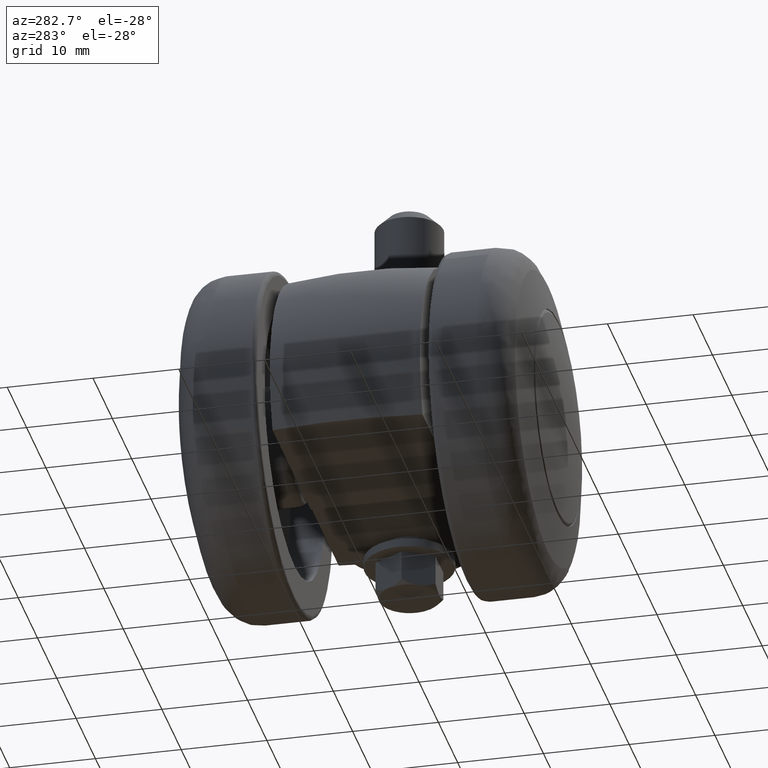
[diagram: clean part render]
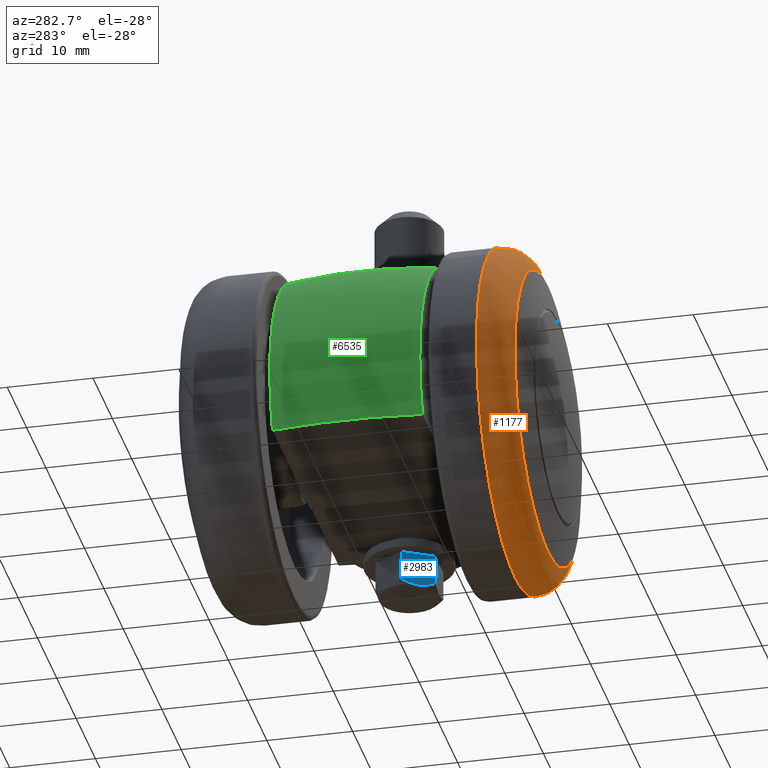
[diagram: same view with three faces highlighted in distinct colors, each labeled with its STEP entity id]
A machine part, auxiliary view with three faces highlighted in distinct colors.
Their STEP definitions:

[orange] entity #1177 — the highlighted face is a freeform B-spline surface patch.
#260=CARTESIAN_POINT('',(-15.271114650524670,-15.710816999999979,-12.914838649031701));
#261=VERTEX_POINT('',#260);
#262=CARTESIAN_POINT('',(0.0,-15.710817000000000,-20.0));
#263=VERTEX_POINT('',#262);
#264=CARTESIAN_POINT('',(-15.271114650524668,-15.710816999999979,-12.914838649031706));
#265=CARTESIAN_POINT('',(-9.279167255449400,-15.710816999999995,-20.0));
#266=CARTESIAN_POINT('',(0.0,-15.710817000000000,-20.0));
#274=(BOUNDED_CURVE()B_SPLINE_CURVE(2,(#264,#265,#266),.UNSPECIFIED.,.F.,.U.)B_SPLINE_CURVE_WITH_KNOTS((3,3),(0.862408068754087,1.0),.UNSPECIFIED.)CURVE()GEOMETRIC_REPRESENTATION_ITEM()RATIONAL_B_SPLINE_CURVE((0.855039476729178,0.838801025498501,1.0))REPRESENTATION_ITEM(''));
#275=EDGE_CURVE('',#261,#263,#274,.T.);
#346=CARTESIAN_POINT('',(-13.767091024963470,-15.710817000000000,14.507487884205510));
#347=VERTEX_POINT('',#346);
#353=CARTESIAN_POINT('',(0.0,-15.710817000000000,20.0));
#354=VERTEX_POINT('',#353);
#355=CARTESIAN_POINT('',(0.0,-15.710817000000000,20.0));
#356=CARTESIAN_POINT('',(-7.979190138179949,-15.710816999999999,19.999999999999993));
#357=CARTESIAN_POINT('',(-13.767091024963474,-15.710817000000004,14.507487884205506));
#365=(BOUNDED_CURVE()B_SPLINE_CURVE(2,(#355,#356,#357),.UNSPECIFIED.,.F.,.U.)B_SPLINE_CURVE_WITH_KNOTS((3,3),(0.500000000000000,0.621049516487266),.UNSPECIFIED.)CURVE()GEOMETRIC_REPRESENTATION_ITEM()RATIONAL_B_SPLINE_CURVE((1.0,0.858181669920930,0.853699662122684))REPRESENTATION_ITEM(''));
#366=EDGE_CURVE('',#354,#347,#365,.T.);
#368=CARTESIAN_POINT('',(8.106151179093516,-15.710817000069889,18.283607769302009));
#369=VERTEX_POINT('',#368);
#370=CARTESIAN_POINT('',(8.106151179093518,-15.710817000069888,18.283607769302005));
#371=CARTESIAN_POINT('',(4.234789588246176,-15.710816999999997,20.0));
#372=CARTESIAN_POINT('',(0.0,-15.710817000000000,20.0));
#380=(BOUNDED_CURVE()B_SPLINE_CURVE(2,(#370,#371,#372),.UNSPECIFIED.,.F.,.U.)B_SPLINE_CURVE_WITH_KNOTS((3,3),(0.431175101877697,0.500000000000000),.UNSPECIFIED.)CURVE()GEOMETRIC_REPRESENTATION_ITEM()RATIONAL_B_SPLINE_CURVE((0.883129907828137,0.919366616217803,1.0))REPRESENTATION_ITEM(''));
#381=EDGE_CURVE('',#369,#354,#380,.T.);
#383=CARTESIAN_POINT('',(19.097290894931451,-15.710817000069440,-5.940831631545199));
#384=VERTEX_POINT('',#383);
#400=CARTESIAN_POINT('',(0.0,-15.710817000000000,-20.0));
#401=CARTESIAN_POINT('',(14.723730654574370,-15.710816999999993,-19.999999999999996));
#402=CARTESIAN_POINT('',(19.097290894931451,-15.710817000069435,-5.940831631545199));
#410=(BOUNDED_CURVE()B_SPLINE_CURVE(2,(#400,#401,#402),.UNSPECIFIED.,.F.,.U.)B_SPLINE_CURVE_WITH_KNOTS((3,3),(0.0,0.199458637681191),.UNSPECIFIED.)CURVE()GEOMETRIC_REPRESENTATION_ITEM()RATIONAL_B_SPLINE_CURVE((1.0,0.766319670357639,0.905515822342134))REPRESENTATION_ITEM(''));
#411=EDGE_CURVE('',#263,#384,#410,.T.);
#430=CARTESIAN_POINT('',(-13.767091024963474,-15.710817000000004,14.507487884205506));
#431=CARTESIAN_POINT('',(-19.999999999999996,-15.710816999999995,8.592678917762354));
#432=CARTESIAN_POINT('',(-20.0,-15.710817000000000,1.673897E-015));
#433=CARTESIAN_POINT('',(-20.0,-15.710817000000002,-7.323181462789214));
#434=CARTESIAN_POINT('',(-15.271114650524668,-15.710816999999979,-12.914838649031706));
#442=(BOUNDED_CURVE()B_SPLINE_CURVE(2,(#430,#431,#432,#433,#434),.UNSPECIFIED.,.F.,.U.)B_SPLINE_CURVE_WITH_KNOTS((3,2,3),(0.621049516487265,0.750000000000000,0.862408068754087),.UNSPECIFIED.)CURVE()GEOMETRIC_REPRESENTATION_ITEM()RATIONAL_B_SPLINE_CURVE((0.853699662122684,0.848925111265616,1.0,0.868305755688046,0.855039476729178))REPRESENTATION_ITEM(''));
#443=EDGE_CURVE('',#347,#261,#442,.T.);
#1060=CARTESIAN_POINT('',(8.103293420644290,-15.473506247143689,18.277167592414600));
#1061=CARTESIAN_POINT('',(7.044574368192737,-15.473506247143677,18.746557123842965));
#1062=CARTESIAN_POINT('',(5.938738749477722,-15.473506247143684,19.090563153760517));
#1063=CARTESIAN_POINT('',(-13.151824404282804,-15.473506247143685,25.029301903238235));
#1064=CARTESIAN_POINT('',(-19.090563153760517,-15.473506247143684,5.938738749477722));
#1065=CARTESIAN_POINT('',(-25.029301903238249,-15.473506247143685,-13.151824404282801));
#1066=CARTESIAN_POINT('',(-5.938738749477723,-15.473506247143684,-19.090563153760517));
#1067=CARTESIAN_POINT('',(13.151824404282799,-15.473506247143685,-25.029301903238249));
#1068=CARTESIAN_POINT('',(19.090563153760517,-15.473506247143684,-5.938738749477724));
#1069=CARTESIAN_POINT('',(8.184736693350166,-18.854524697004308,18.460864796409179));
#1070=CARTESIAN_POINT('',(7.115376838445620,-18.854524697004312,18.934971992326414));
#1071=CARTESIAN_POINT('',(5.998426865703460,-18.854524697004312,19.282435502487203));
#1072=CARTESIAN_POINT('',(-13.284008636783749,-18.854524697004319,25.280862368190665));
#1073=CARTESIAN_POINT('',(-19.282435502487203,-18.854524697004312,5.998426865703461));
#1074=CARTESIAN_POINT('',(-25.280862368190665,-18.854524697004319,-13.284008636783748));
#1075=CARTESIAN_POINT('',(-5.998426865703461,-18.854524697004312,-19.282435502487203));
#1076=CARTESIAN_POINT('',(13.284008636783748,-18.854524697004319,-25.280862368190665));
#1077=CARTESIAN_POINT('',(19.282435502487203,-18.854524697004312,-5.998426865703464));
#1078=CARTESIAN_POINT('',(6.846554747843488,-19.610033649774852,15.442564160169313));
#1079=CARTESIAN_POINT('',(5.952032289021034,-19.610033649774856,15.839156133107325));
#1080=CARTESIAN_POINT('',(5.017700565778839,-19.610033649774845,16.129810314704468));
#1081=CARTESIAN_POINT('',(-11.112109748925622,-19.610033649774849,21.147510880483306));
#1082=CARTESIAN_POINT('',(-16.129810314704468,-19.610033649774845,5.017700565778839));
#1083=CARTESIAN_POINT('',(-21.147510880483306,-19.610033649774849,-11.112109748925622));
#1084=CARTESIAN_POINT('',(-5.017700565778839,-19.610033649774845,-16.129810314704468));
#1085=CARTESIAN_POINT('',(11.112109748925622,-19.610033649774849,-21.147510880483306));
#1086=CARTESIAN_POINT('',(16.129810314704468,-19.610033649774845,-5.017700565778840));
#1094=(BOUNDED_SURFACE()B_SPLINE_SURFACE(2,2,((#1060,#1069,#1078),(#1061,#1070,#1079),(#1062,#1071,#1080),(#1063,#1072,#1081),(#1064,#1073,#1082),(#1065,#1074,#1083),(#1066,#1075,#1084),(#1067,#1076,#1085),(#1068,#1077,#1086)),.UNSPECIFIED.,.F.,.F.,.U.)B_SPLINE_SURFACE_WITH_KNOTS((3,2,2,2,3),(3,3),(0.0,2.650030368855470,35.775441570402727,68.900852771949985,102.026263973497290),(0.0,5.864055308616055),.UNSPECIFIED.)GEOMETRIC_REPRESENTATION_ITEM()RATIONAL_B_SPLINE_SURFACE(((0.875931297452828,0.669055781850209,0.877444359425143),(0.893948527657870,0.682817742493314,0.895492712146242),(0.915397607339027,0.699201025997140,0.916978842435022),(0.647283855631366,0.494409786895169,0.648401957690395),(0.915397607339027,0.699201025997140,0.916978842435022),(0.647283855631366,0.494409786895169,0.648401957690395),(0.915397607339027,0.699201025997140,0.916978842435022),(0.647283855631366,0.494409786895169,0.648401957690395),(0.915397607339027,0.699201025997140,0.916978842435022)))REPRESENTATION_ITEM('')SURFACE());
#1095=CARTESIAN_POINT('',(6.939526629438012,-19.550340797989250,15.652259647310309));
#1096=VERTEX_POINT('',#1095);
#1097=CARTESIAN_POINT('',(0.0,-19.550340798363852,17.121631401930902));
#1098=VERTEX_POINT('',#1097);
#1099=CARTESIAN_POINT('',(6.939526629438012,-19.550340797989247,15.652259647310315));
#1100=CARTESIAN_POINT('',(3.625325319825641,-19.550340798363859,17.121631401930895));
#1101=CARTESIAN_POINT('',(0.0,-19.550340798363852,17.121631401930902));
#1109=(BOUNDED_CURVE()B_SPLINE_CURVE(2,(#1099,#1100,#1101),.UNSPECIFIED.,.F.,.U.)B_SPLINE_CURVE_WITH_KNOTS((3,3),(0.431175101876103,0.500000000000000),.UNSPECIFIED.)CURVE()GEOMETRIC_REPRESENTATION_ITEM()RATIONAL_B_SPLINE_CURVE((0.883129907826458,0.919366616215936,1.0))REPRESENTATION_ITEM(''));
#1110=EDGE_CURVE('',#1096,#1098,#1109,.T.);
#1111=ORIENTED_EDGE('',*,*,#1110,.F.);
#1112=CARTESIAN_POINT('',(8.106151179093516,-15.710817000069893,18.283607769302009));
#1113=CARTESIAN_POINT('',(8.106151179047831,-18.709489488835210,18.283607769207627));
#1114=CARTESIAN_POINT('',(6.939526629438013,-19.550340797989247,15.652259647310313));
#1122=(BOUNDED_CURVE()B_SPLINE_CURVE(2,(#1112,#1113,#1114),.UNSPECIFIED.,.F.,.U.)B_SPLINE_CURVE_WITH_KNOTS((3,3),(-1.680154585360279,-0.314372153896799),.UNSPECIFIED.)CURVE()GEOMETRIC_REPRESENTATION_ITEM()RATIONAL_B_SPLINE_CURVE((0.857997957390248,0.687057807158320,0.859373527053074))REPRESENTATION_ITEM(''));
#1123=EDGE_CURVE('',#369,#1096,#1122,.T.);
#1124=ORIENTED_EDGE('',*,*,#1123,.F.);
#1125=ORIENTED_EDGE('',*,*,#381,.T.);
#1126=ORIENTED_EDGE('',*,*,#366,.T.);
#1127=ORIENTED_EDGE('',*,*,#443,.T.);
#1128=ORIENTED_EDGE('',*,*,#275,.T.);
#1129=ORIENTED_EDGE('',*,*,#411,.T.);
#1130=CARTESIAN_POINT('',(16.348838775160761,-19.550340797973998,-5.085836471327559));
#1131=VERTEX_POINT('',#1130);
#1132=CARTESIAN_POINT('',(19.097290894931447,-15.710817000069436,-5.940831631545199));
#1133=CARTESIAN_POINT('',(19.097290894833442,-18.709489488750066,-5.940831631509769));
#1134=CARTESIAN_POINT('',(16.348838775160761,-19.550340797973998,-5.085836471327559));
#1142=(BOUNDED_CURVE()B_SPLINE_CURVE(2,(#1132,#1133,#1134),.UNSPECIFIED.,.F.,.U.)B_SPLINE_CURVE_WITH_KNOTS((3,3),(-1.680154585360538,-0.314372153927780),.UNSPECIFIED.)CURVE()GEOMETRIC_REPRESENTATION_ITEM()RATIONAL_B_SPLINE_CURVE((0.896656290732558,0.718014185910960,0.898093838658893))REPRESENTATION_ITEM(''));
#1143=EDGE_CURVE('',#384,#1131,#1142,.T.);
#1144=ORIENTED_EDGE('',*,*,#1143,.T.);
#1145=CARTESIAN_POINT('',(0.0,-19.550340798363852,-17.121631401930902));
#1146=VERTEX_POINT('',#1145);
#1147=CARTESIAN_POINT('',(0.0,-19.550340798363852,-17.121631401930902));
#1148=CARTESIAN_POINT('',(12.604714456254973,-19.550340798363852,-17.121631401930902));
#1149=CARTESIAN_POINT('',(16.348838775160754,-19.550340797974002,-5.085836471327559));
#1157=(BOUNDED_CURVE()B_SPLINE_CURVE(2,(#1147,#1148,#1149),.UNSPECIFIED.,.F.,.U.)B_SPLINE_CURVE_WITH_KNOTS((3,3),(0.0,0.199458637678867),.UNSPECIFIED.)CURVE()GEOMETRIC_REPRESENTATION_ITEM()RATIONAL_B_SPLINE_CURVE((1.0,0.766319670360362,0.905515822338890))REPRESENTATION_ITEM(''));
#1158=EDGE_CURVE('',#1146,#1131,#1157,.T.);
#1159=ORIENTED_EDGE('',*,*,#1158,.F.);
#1160=CARTESIAN_POINT('',(0.0,-19.550340798363852,17.121631401930902));
#1161=CARTESIAN_POINT('',(-17.121631401930909,-19.550340798363848,17.121631401930909));
#1162=CARTESIAN_POINT('',(-17.121631401930902,-19.550340798363852,1.673897E-015));
#1163=CARTESIAN_POINT('',(-17.121631401930909,-19.550340798363848,-17.121631401930909));
#1164=CARTESIAN_POINT('',(0.0,-19.550340798363852,-17.121631401930902));
#1172=(BOUNDED_CURVE()B_SPLINE_CURVE(2,(#1160,#1161,#1162,#1163,#1164),.UNSPECIFIED.,.F.,.U.)B_SPLINE_CURVE_WITH_KNOTS((3,2,3),(0.500000000000000,0.750000000000000,1.0),.UNSPECIFIED.)CURVE()GEOMETRIC_REPRESENTATION_ITEM()RATIONAL_B_SPLINE_CURVE((1.0,0.707106781186548,1.0,0.707106781186548,1.0))REPRESENTATION_ITEM(''));
#1173=EDGE_CURVE('',#1098,#1146,#1172,.T.);
#1174=ORIENTED_EDGE('',*,*,#1173,.F.);
#1175=EDGE_LOOP('',(#1111,#1124,#1125,#1126,#1127,#1128,#1129,#1144,#1159,#1174));
#1176=FACE_OUTER_BOUND('',#1175,.T.);
#1177=ADVANCED_FACE('',(#1176),#1094,.T.);

[blue] entity #2983 — the highlighted face is a freeform B-spline surface patch.
#2451=CARTESIAN_POINT('',(11.968911043377240,-1.750000075131565,-13.100000000000000));
#2452=VERTEX_POINT('',#2451);
#2558=CARTESIAN_POINT('',(12.979274000000000,-3.500000000000000,-12.600000080112800));
#2559=VERTEX_POINT('',#2558);
#2560=CARTESIAN_POINT('',(11.968911043377240,-1.750000075131565,-13.100000000000000));
#2561=CARTESIAN_POINT('',(12.144697670341159,-2.054471435609807,-13.099995888410779));
#2562=CARTESIAN_POINT('',(12.316170455738130,-2.351471003532124,-13.050474742177030));
#2563=CARTESIAN_POINT('',(12.568664960004490,-2.788804301036217,-12.918728507812340));
#2564=CARTESIAN_POINT('',(12.652230484542891,-2.933544031155194,-12.865177859415660));
#2565=CARTESIAN_POINT('',(12.817820416147210,-3.220354197706787,-12.742531411798710));
#2566=CARTESIAN_POINT('',(12.899119713445840,-3.361168707217329,-12.674017981415529));
#2567=CARTESIAN_POINT('',(12.979274000000000,-3.500000000000000,-12.600000080112791));
#2568=B_SPLINE_CURVE_WITH_KNOTS('',3,(#2560,#2561,#2562,#2563,#2564,#2565,#2566,#2567),.UNSPECIFIED.,.F.,.U.,(4,2,2,4),(0.500826479905854,0.750000000000000,0.875000000000000,1.0),.UNSPECIFIED.);
#2569=EDGE_CURVE('',#2452,#2559,#2568,.T.);
#2800=CARTESIAN_POINT('',(10.958548000000000,0.0,-12.600000000000000));
#2801=VERTEX_POINT('',#2800);
#2814=CARTESIAN_POINT('',(10.958548000000000,-2.037385E-015,-12.599999999999991));
#2815=CARTESIAN_POINT('',(11.118261439962700,-0.276631784749363,-12.747486240666481));
#2816=CARTESIAN_POINT('',(11.281015980948069,-0.558530910830180,-12.871956148961720));
#2817=CARTESIAN_POINT('',(11.532337464197830,-0.993832476393338,-13.004246549700021));
#2818=CARTESIAN_POINT('',(11.617319896249089,-1.141026362243982,-13.039196123958670));
#2819=CARTESIAN_POINT('',(11.746980373829750,-1.365604890719541,-13.075069639346291));
#2820=CARTESIAN_POINT('',(11.790565044303021,-1.441095752249733,-13.084268703041200));
#2821=CARTESIAN_POINT('',(11.878522112243710,-1.593441858447401,-13.096704981028600));
#2822=CARTESIAN_POINT('',(11.923062102555919,-1.670587382428750,-13.099916899801160));
#2823=CARTESIAN_POINT('',(11.967744866327889,-1.747980197289293,-13.099999392441090));
#2824=CARTESIAN_POINT('',(11.968327978574459,-1.748990177297962,-13.099999923873989));
#2825=CARTESIAN_POINT('',(11.968911043377240,-1.750000075131565,-13.100000000000000));
#2826=B_SPLINE_CURVE_WITH_KNOTS('',3,(#2814,#2815,#2816,#2817,#2818,#2819,#2820,#2821,#2822,#2823,#2824,#2825),.UNSPECIFIED.,.F.,.U.,(4,2,2,2,2,4),(0.0,0.250000000000000,0.375000000000000,0.437500000000000,0.500000000000000,0.500826480978672),.UNSPECIFIED.);
#2827=EDGE_CURVE('',#2801,#2452,#2826,.T.);
#2846=CARTESIAN_POINT('',(10.958548000000000,0.0,-9.100000000000000));
#2847=VERTEX_POINT('',#2846);
#2848=CARTESIAN_POINT('',(10.958548000000000,0.0,-9.100000000000000));
#2849=CARTESIAN_POINT('',(10.958548000000000,0.0,-12.600000000000000));
#2850=QUASI_UNIFORM_CURVE('',1,(#2848,#2849),.UNSPECIFIED.,.F.,.U.);
#2851=EDGE_CURVE('',#2847,#2801,#2850,.T.);
#2949=CARTESIAN_POINT('',(12.979274000000000,-3.500000000000000,-9.100000000000000));
#2950=VERTEX_POINT('',#2949);
#2951=CARTESIAN_POINT('',(12.979274000000000,-3.500000000000000,-9.100000000000000));
#2952=CARTESIAN_POINT('',(12.979274000000000,-3.500000000000000,-12.600000080112800));
#2953=QUASI_UNIFORM_CURVE('',1,(#2951,#2952),.UNSPECIFIED.,.F.,.U.);
#2954=EDGE_CURVE('',#2950,#2559,#2953,.T.);
#2967=CARTESIAN_POINT('',(13.080209221845180,-3.674824927505332,-13.299800376706131));
#2968=CARTESIAN_POINT('',(10.857612687821330,0.174825083967523,-13.299800376706131));
#2969=CARTESIAN_POINT('',(13.080209221845180,-3.674824927505332,-8.900200481600759));
#2970=CARTESIAN_POINT('',(10.857612687821330,0.174825083967523,-8.900200481600759));
#2971=B_SPLINE_SURFACE_WITH_KNOTS('',1,1,((#2967,#2969),(#2968,#2970)),.UNSPECIFIED.,.F.,.F.,.U.,(2,2),(2,2),(0.0,4.445192972626473),(0.0,4.399599895105366),.UNSPECIFIED.);
#2972=ORIENTED_EDGE('',*,*,#2851,.T.);
#2973=ORIENTED_EDGE('',*,*,#2827,.T.);
#2974=ORIENTED_EDGE('',*,*,#2569,.T.);
#2975=ORIENTED_EDGE('',*,*,#2954,.F.);
#2976=CARTESIAN_POINT('',(10.958548000000000,0.0,-9.100000000000000));
#2977=CARTESIAN_POINT('',(12.979274000000000,-3.500000000000000,-9.100000000000000));
#2978=QUASI_UNIFORM_CURVE('',1,(#2976,#2977),.UNSPECIFIED.,.F.,.U.);
#2979=EDGE_CURVE('',#2847,#2950,#2978,.T.);
#2980=ORIENTED_EDGE('',*,*,#2979,.F.);
#2981=EDGE_LOOP('',(#2972,#2973,#2974,#2975,#2980));
#2982=FACE_OUTER_BOUND('',#2981,.T.);
#2983=ADVANCED_FACE('',(#2982),#2971,.F.);

[green] entity #6535 — the highlighted face is a freeform B-spline surface patch.
#5581=CARTESIAN_POINT('',(17.914251238854799,8.033225897666430,-4.766488081632760));
#5582=VERTEX_POINT('',#5581);
#5658=CARTESIAN_POINT('',(17.914251238862551,-8.033225897663630,-4.766488081632760));
#5659=VERTEX_POINT('',#5658);
#5783=CARTESIAN_POINT('',(7.403088951158311,-5.538837387554620,17.259711023709801));
#5784=VERTEX_POINT('',#5783);
#5785=CARTESIAN_POINT('',(17.914251238862551,-8.033225897663630,-4.766488081632760));
#5786=CARTESIAN_POINT('',(17.966359183007249,-8.026874863474060,-4.565692986233878));
#5787=CARTESIAN_POINT('',(18.069356624220639,-8.014321302182760,-4.168798014195636));
#5788=CARTESIAN_POINT('',(18.196756228808219,-7.999004924842661,-3.574303088601877));
#5789=CARTESIAN_POINT('',(18.303341403480609,-7.986573839477517,-2.990551698458225));
#5790=CARTESIAN_POINT('',(18.388596864716941,-7.977248254587569,-2.417939216898310));
#5791=CARTESIAN_POINT('',(18.454239150895209,-7.970971321363548,-1.857382466760936));
#5792=CARTESIAN_POINT('',(18.501404216708789,-7.967757708143218,-1.309554469836669));
#5793=CARTESIAN_POINT('',(18.531367322613690,-7.967603403512776,-0.775087133204184));
#5794=CARTESIAN_POINT('',(18.545351616092571,-7.970509689601951,-0.254524518784415));
#5795=CARTESIAN_POINT('',(18.544572496938841,-7.976474424395925,0.251660535743235));
#5796=CARTESIAN_POINT('',(18.530221005755308,-7.985503360805645,0.743062220155383));
#5797=CARTESIAN_POINT('',(18.503466115651872,-7.997574810673464,1.219348045308084));
#5798=CARTESIAN_POINT('',(18.439920639116199,-8.022960112765988,1.989561171801496));
#5799=CARTESIAN_POINT('',(18.275002269757270,-8.082120572525584,3.215424067327366));
#5800=CARTESIAN_POINT('',(17.894505005590560,-8.182600358696604,4.896742788359291));
#5801=CARTESIAN_POINT('',(17.348782015634139,-8.282341851353406,6.516842126211997));
#5802=CARTESIAN_POINT('',(16.683871330559089,-8.359621647559374,8.040458859572453));
#5803=CARTESIAN_POINT('',(15.962796863862570,-8.380993408331603,9.390920061997758));
#5804=CARTESIAN_POINT('',(15.066454081781311,-8.327490911978158,10.780795361138640));
#5805=CARTESIAN_POINT('',(14.099451876221600,-8.163468243820315,12.048521795955020));
#5806=CARTESIAN_POINT('',(13.297982562055070,-7.928600576712904,12.945535943419170));
#5807=CARTESIAN_POINT('',(12.761109470430410,-7.719597198217616,13.496713931321930));
#5808=CARTESIAN_POINT('',(12.466154328294470,-7.592940995246647,13.788838568738811));
#5809=CARTESIAN_POINT('',(12.174326623764250,-7.468614809065756,14.064563390056509));
#5810=CARTESIAN_POINT('',(11.908298874648089,-7.364905525454758,14.304130186827591));
#5811=CARTESIAN_POINT('',(11.609214675600940,-7.270460623120170,14.561660718455061));
#5812=CARTESIAN_POINT('',(11.173184866472930,-7.135775814440390,14.919867695591851));
#5813=CARTESIAN_POINT('',(10.525883600458791,-6.948705412128718,15.410378525275931));
#5814=CARTESIAN_POINT('',(9.785284516098537,-6.727137411643456,15.916120673738799));
#5815=CARTESIAN_POINT('',(9.075456045562342,-6.470337642351790,16.356198421445960));
#5816=CARTESIAN_POINT('',(8.468379071433731,-6.191535006252049,16.705368310813888));
#5817=CARTESIAN_POINT('',(7.917914114728858,-5.892342556883730,17.002439363086289));
#5818=CARTESIAN_POINT('',(7.572689592201480,-5.655293822812133,17.174957127335791));
#5819=CARTESIAN_POINT('',(7.403088951158311,-5.538837387554620,17.259711023709801));
#5820=B_SPLINE_CURVE_WITH_KNOTS('',3,(#5785,#5786,#5787,#5788,#5789,#5790,#5791,#5792,#5793,#5794,#5795,#5796,#5797,#5798,#5799,#5800,#5801,#5802,#5803,#5804,#5805,#5806,#5807,#5808,#5809,#5810,#5811,#5812,#5813,#5814,#5815,#5816,#5817,#5818,#5819),.UNSPECIFIED.,.F.,.U.,(4,1,1,1,1,1,1,1,1,1,1,1,1,1,1,1,1,1,1,1,1,1,1,1,1,1,1,1,1,1,1,1,4),(0.0,0.023134657630503,0.045728354445773,0.067780999411041,0.089292568582962,0.110263107972298,0.130692736924785,0.150581652093267,0.169930132087804,0.188738542907130,0.207007344275210,0.224737097031538,0.241928471754678,0.293200990810137,0.362636930863139,0.434097392724822,0.483746809426520,0.548019888203447,0.604487135512648,0.667960181194540,0.726306161141386,0.740727718064208,0.756831550676735,0.774683158927540,0.787580057752253,0.798366936040224,0.819915744085773,0.852248017028327,0.891244491762327,0.922835832544236,0.949540242699298,0.975210314949735,1.0),.UNSPECIFIED.);
#5821=EDGE_CURVE('',#5659,#5784,#5820,.T.);
#5938=CARTESIAN_POINT('',(7.386479234318310,5.485709288029580,17.271525380089351));
#5939=VERTEX_POINT('',#5938);
#5953=CARTESIAN_POINT('',(7.403088951158311,-5.538837387554620,17.259711023709801));
#5954=CARTESIAN_POINT('',(7.334529164740666,-5.486861049581683,17.293273304077829));
#5955=CARTESIAN_POINT('',(7.196703203829309,-5.382372781481388,17.360743661710590));
#5956=CARTESIAN_POINT('',(7.001634897119875,-5.203854570734504,17.454688716293571));
#5957=CARTESIAN_POINT('',(6.814429701050631,-5.008866384696103,17.543962160417621));
#5958=CARTESIAN_POINT('',(6.636053652048231,-4.795829789416280,17.628158847871710));
#5959=CARTESIAN_POINT('',(6.466341170465348,-4.565191210967439,17.707566015795059));
#5960=CARTESIAN_POINT('',(6.305421818875332,-4.316837202416782,17.782247168896301));
#5961=CARTESIAN_POINT('',(6.153332422459692,-4.050801768442972,17.852292945577190));
#5962=CARTESIAN_POINT('',(6.010116713036469,-3.767086467520705,17.917752572176020));
#5963=CARTESIAN_POINT('',(5.875838382738108,-3.465648869275987,17.978645368589749));
#5964=CARTESIAN_POINT('',(5.606338558536185,-2.780159844653781,18.099712030466300));
#5965=CARTESIAN_POINT('',(5.303739468953599,-1.641790635979052,18.231412868031960));
#5966=CARTESIAN_POINT('',(5.177689698524464,-0.037588612259944,18.287289306953959));
#5967=CARTESIAN_POINT('',(5.299234324397631,1.568422495676676,18.234487104565201));
#5968=CARTESIAN_POINT('',(5.616592758140442,2.780990346291720,18.097170206721341));
#5969=CARTESIAN_POINT('',(5.944962046364763,3.595827068623386,17.949792423126461));
#5970=CARTESIAN_POINT('',(6.181475104421584,4.071146912848945,17.842150422739891));
#5971=CARTESIAN_POINT('',(6.443483775787870,4.498858943065685,17.721412080956171));
#5972=CARTESIAN_POINT('',(6.731504104039623,4.877669274286903,17.586713684157250));
#5973=CARTESIAN_POINT('',(7.042701583463696,5.211878136558241,17.439097860578141));
#5974=CARTESIAN_POINT('',(7.272672842930659,5.395058979576839,17.326999690277940));
#5975=CARTESIAN_POINT('',(7.386479234318310,5.485709288029580,17.271525380089351));
#5976=B_SPLINE_CURVE_WITH_KNOTS('',3,(#5953,#5954,#5955,#5956,#5957,#5958,#5959,#5960,#5961,#5962,#5963,#5964,#5965,#5966,#5967,#5968,#5969,#5970,#5971,#5972,#5973,#5974,#5975),.UNSPECIFIED.,.F.,.U.,(4,1,1,1,1,1,1,1,1,1,1,1,1,1,1,1,1,1,1,1,4),(0.000000148191548,0.022197241357129,0.044623045859856,0.067391102922238,0.090609951851452,0.114381877159856,0.138802173944591,0.163958766484240,0.189932132388584,0.216795468498345,0.244615031354378,0.369404011468025,0.499618991481180,0.629799823341089,0.754896159557081,0.800587953370339,0.843838337172977,0.884986345816347,0.924424722791379,0.962598917767378,0.999997832912100),.UNSPECIFIED.);
#5977=EDGE_CURVE('',#5784,#5939,#5976,.T.);
#6053=CARTESIAN_POINT('',(7.386479234318310,5.485709288029580,17.271525380089351));
#6054=CARTESIAN_POINT('',(7.486221019309778,5.556907220860222,17.222098678278471));
#6055=CARTESIAN_POINT('',(7.687882344920311,5.700857617542867,17.122166095273371));
#6056=CARTESIAN_POINT('',(8.003241199394600,5.896671251997398,16.958750576215639));
#6057=CARTESIAN_POINT('',(8.331024800717351,6.080632235994523,16.782742469868658));
#6058=CARTESIAN_POINT('',(8.671498394363168,6.251034909392844,16.592469806959979));
#6059=CARTESIAN_POINT('',(9.135624412407225,6.458480586073858,16.322253143447369));
#6060=CARTESIAN_POINT('',(9.768976279840670,6.693917870743215,15.930007000550590));
#6061=CARTESIAN_POINT('',(10.511487019273140,6.923210063571843,15.423273026747310));
#6062=CARTESIAN_POINT('',(11.156835003966849,7.114950267824174,14.934829545544810));
#6063=CARTESIAN_POINT('',(11.590705753248750,7.252960337053574,14.578701902554320));
#6064=CARTESIAN_POINT('',(11.882460101941531,7.347265590518465,14.327951240595310));
#6065=CARTESIAN_POINT('',(12.146453348796500,7.454034688656875,14.090748148022859));
#6066=CARTESIAN_POINT('',(12.437980717242381,7.580444293550019,13.816178933081821));
#6067=CARTESIAN_POINT('',(12.737792489715600,7.710495401240729,13.520107858661641));
#6068=CARTESIAN_POINT('',(13.275119475342910,7.921073042167082,12.970229728555740));
#6069=CARTESIAN_POINT('',(14.079347755203759,8.158949449357030,12.072822889893921));
#6070=CARTESIAN_POINT('',(15.049408247275110,8.325433328598255,10.805092230607739));
#6071=CARTESIAN_POINT('',(15.950228148593000,8.381670926311035,9.412324060405652));
#6072=CARTESIAN_POINT('',(16.680059457231110,8.363240832041781,8.048581062209506));
#6073=CARTESIAN_POINT('',(17.345918534482411,8.288382195214686,6.522075018368141));
#6074=CARTESIAN_POINT('',(17.890241684716120,8.186426772477971,4.907078377673295));
#6075=CARTESIAN_POINT('',(18.271277641402769,8.083496021832877,3.235667196120195));
#6076=CARTESIAN_POINT('',(18.459492716606221,8.015995394721090,1.849637698374606));
#6077=CARTESIAN_POINT('',(18.536950920578271,7.983759064528832,0.737991357447512));
#6078=CARTESIAN_POINT('',(18.552482548705029,7.968958336848079,-0.261745190207765));
#6079=CARTESIAN_POINT('',(18.509065096124271,7.966316116091839,-1.319119109250257));
#6080=CARTESIAN_POINT('',(18.395252117467379,7.976109271298095,-2.429604479155302));
#6081=CARTESIAN_POINT('',(18.207630329498301,7.997502877653438,-3.589668941810608));
#6082=CARTESIAN_POINT('',(18.013610142748998,8.021127557241091,-4.367933912151980));
#6083=CARTESIAN_POINT('',(17.914251238854799,8.033225897666430,-4.766488081632760));
#6084=B_SPLINE_CURVE_WITH_KNOTS('',3,(#6053,#6054,#6055,#6056,#6057,#6058,#6059,#6060,#6061,#6062,#6063,#6064,#6065,#6066,#6067,#6068,#6069,#6070,#6071,#6072,#6073,#6074,#6075,#6076,#6077,#6078,#6079,#6080,#6081,#6082,#6083),.UNSPECIFIED.,.F.,.U.,(4,1,1,1,1,1,1,1,1,1,1,1,1,1,1,1,1,1,1,1,1,1,1,1,1,1,1,1,4),(0.0,0.014707675306236,0.029736477035762,0.045122930328225,0.060901103570506,0.077102651983772,0.109197688818318,0.147785705454688,0.180323103495701,0.201764336649875,0.212131912383118,0.224410329211139,0.243009776121284,0.258884541624196,0.273495542779581,0.331741622649389,0.395238762729899,0.451772734466870,0.516257605515822,0.567154421697895,0.637218745362155,0.705992202989096,0.758023668963719,0.792957262104318,0.830045226577686,0.869291604048902,0.910698921332048,0.954268380823266,1.0),.UNSPECIFIED.);
#6085=EDGE_CURVE('',#5939,#5582,#6084,.T.);
#6291=CARTESIAN_POINT('',(-17.071565970389500,8.749999987782589,-7.0));
#6292=VERTEX_POINT('',#6291);
#6299=CARTESIAN_POINT('',(-17.071566060112449,-8.750000000000000,-7.0));
#6300=VERTEX_POINT('',#6299);
#6306=CARTESIAN_POINT('',(-17.071565970389500,8.749999987782589,-7.0));
#6307=CARTESIAN_POINT('',(-17.120747453738371,8.388818060238544,-7.000000000000003));
#6308=CARTESIAN_POINT('',(-17.166934987479529,8.026668211518496,-7.000000000000001));
#6309=CARTESIAN_POINT('',(-17.253208862207639,7.301122308583183,-7.0));
#6310=CARTESIAN_POINT('',(-17.293245217614960,6.938163401099259,-7.0));
#6311=CARTESIAN_POINT('',(-17.404096679073579,5.848731457941935,-6.999999999999999));
#6312=CARTESIAN_POINT('',(-17.465657928447271,5.121703426352674,-7.000000000000001));
#6313=CARTESIAN_POINT('',(-17.613535710566079,2.938411910233853,-7.0));
#6314=CARTESIAN_POINT('',(-17.663102986991440,1.479944405491077,-6.999999999999998));
#6315=CARTESIAN_POINT('',(-17.663532098137559,-0.027140147488679,-7.0));
#6316=CARTESIAN_POINT('',(-17.663496515346669,-0.073548358183108,-7.0));
#6317=CARTESIAN_POINT('',(-17.663326883545341,-0.165792862593715,-7.000000000000002));
#6318=CARTESIAN_POINT('',(-17.662925375638292,-0.304137457009127,-6.999999999999998));
#6319=CARTESIAN_POINT('',(-17.660960065219712,-0.626786520336745,-7.0));
#6320=CARTESIAN_POINT('',(-17.652923046454202,-1.271465806468155,-6.999999999999998));
#6321=CARTESIAN_POINT('',(-17.639019213730460,-1.822990886469571,-7.000000000000001));
#6322=CARTESIAN_POINT('',(-17.601913331705571,-2.924639790841984,-7.0));
#6323=CARTESIAN_POINT('',(-17.564782199594319,-3.657204617244782,-7.000000000000001));
#6324=CARTESIAN_POINT('',(-17.416510105829818,-5.849341419667979,-7.000000000000002));
#6325=CARTESIAN_POINT('',(-17.268551622676789,-7.303364938210682,-7.0));
#6326=CARTESIAN_POINT('',(-17.071566060112449,-8.750000000000000,-7.0));
#6327=B_SPLINE_CURVE_WITH_KNOTS('',3,(#6306,#6307,#6308,#6309,#6310,#6311,#6312,#6313,#6314,#6315,#6316,#6317,#6318,#6319,#6320,#6321,#6322,#6323,#6324,#6325,#6326),.UNSPECIFIED.,.F.,.U.,(4,2,2,2,2,2,1,1,1,2,2,4),(0.0,0.062500000000000,0.125000000000000,0.250000000000000,0.500000000000000,0.507812500000000,0.515625000000000,0.531250000000000,0.562500000000000,0.625000000000000,0.750000000000000,1.0),.UNSPECIFIED.);
#6328=EDGE_CURVE('',#6292,#6300,#6327,.T.);
#6356=CARTESIAN_POINT('',(17.518799232968949,6.045137370326870,-6.650000000000090));
#6357=VERTEX_POINT('',#6356);
#6358=CARTESIAN_POINT('',(17.914251238854821,8.033225897666435,-4.766488081632770));
#6359=CARTESIAN_POINT('',(17.880055248774120,8.037781881203378,-4.892962502536809));
#6360=CARTESIAN_POINT('',(17.846407037208071,8.029322029000650,-5.017837031795090));
#6361=CARTESIAN_POINT('',(17.796897416351118,7.997058650005957,-5.202780109704046));
#6362=CARTESIAN_POINT('',(17.780557310664371,7.983019140645059,-5.264030669808004));
#6363=CARTESIAN_POINT('',(17.756337352584222,7.956797238753236,-5.355291477093816));
#6364=CARTESIAN_POINT('',(17.748296515821600,7.947168463382724,-5.385670583379727));
#6365=CARTESIAN_POINT('',(17.732506029569329,7.926384557997112,-5.445520624761572));
#6366=CARTESIAN_POINT('',(17.724735978255961,7.915211169178522,-5.475068088832245));
#6367=CARTESIAN_POINT('',(17.686523269352410,7.855481349258668,-5.620943837866476));
#6368=CARTESIAN_POINT('',(17.657967054843368,7.795455413285689,-5.731743133933775));
#6369=CARTESIAN_POINT('',(17.618681636227048,7.686468479465130,-5.888919199645269));
#6370=CARTESIAN_POINT('',(17.606136571468308,7.646732212901336,-5.940002236703679));
#6371=CARTESIAN_POINT('',(17.582943681735632,7.562686358542647,-6.036653213762627));
#6372=CARTESIAN_POINT('',(17.561500783909700,7.473746991400296,-6.128361739494425));
#6373=CARTESIAN_POINT('',(17.543633090825729,7.375243934630250,-6.210445763388172));
#6374=CARTESIAN_POINT('',(17.527635883617300,7.271936154860710,-6.287711206634187));
#6375=CARTESIAN_POINT('',(17.520542280028859,7.217539345884549,-6.324118009549488));
#6376=CARTESIAN_POINT('',(17.502581896190030,7.050259361931216,-6.424023503423662));
#6377=CARTESIAN_POINT('',(17.494909152066811,6.933096636869591,-6.478680721704620));
#6378=CARTESIAN_POINT('',(17.489665274045990,6.749514464650406,-6.544110711606596));
#6379=CARTESIAN_POINT('',(17.488970696824140,6.686693118573019,-6.563214681152553));
#6380=CARTESIAN_POINT('',(17.489677690457832,6.560160607012049,-6.595491691531433));
#6381=CARTESIAN_POINT('',(17.491065499231379,6.496542395100036,-6.608680191968317));
#6382=CARTESIAN_POINT('',(17.498134341037929,6.304707793499284,-6.640023134853577));
#6383=CARTESIAN_POINT('',(17.506715719760908,6.175462874184444,-6.650000000000072));
#6384=CARTESIAN_POINT('',(17.518799232968949,6.045137370326870,-6.650000000000090));
#6385=B_SPLINE_CURVE_WITH_KNOTS('',3,(#6358,#6359,#6360,#6361,#6362,#6363,#6364,#6365,#6366,#6367,#6368,#6369,#6370,#6371,#6372,#6373,#6374,#6375,#6376,#6377,#6378,#6379,#6380,#6381,#6382,#6383,#6384),.UNSPECIFIED.,.F.,.U.,(4,2,2,2,2,2,2,1,2,2,2,2,2,4),(0.0,0.125000000000002,0.187500000000003,0.218750000000004,0.250000000000005,0.375000000000003,0.437500000000002,0.500000000000001,0.562500000000001,0.625000000000000,0.750000000000000,0.812500000000000,0.875000000000000,1.0),.UNSPECIFIED.);
#6386=EDGE_CURVE('',#5582,#6357,#6385,.T.);
#6390=CARTESIAN_POINT('',(17.518799232968899,-6.045137370326870,-6.650000000000090));
#6391=VERTEX_POINT('',#6390);
#6392=CARTESIAN_POINT('',(17.518799232968899,-6.045137370326870,-6.650000000000090));
#6393=CARTESIAN_POINT('',(17.512834462233450,-6.109469798993286,-6.650000000000089));
#6394=CARTESIAN_POINT('',(17.507685163255442,-6.173961198372443,-6.647560784729786));
#6395=CARTESIAN_POINT('',(17.499164110505738,-6.303289490464276,-6.637398804390432));
#6396=CARTESIAN_POINT('',(17.495785055608010,-6.368437515053357,-6.629613365476833));
#6397=CARTESIAN_POINT('',(17.488684949296871,-6.561196560300029,-6.598111196333843));
#6398=CARTESIAN_POINT('',(17.487917980768479,-6.686586573980090,-6.566388621718931));
#6399=CARTESIAN_POINT('',(17.493071211123770,-6.869608430030125,-6.501381460576476));
#6400=CARTESIAN_POINT('',(17.495842761278720,-6.929767894924527,-6.476794864215909));
#6401=CARTESIAN_POINT('',(17.503606951689211,-7.048261928544241,-6.421340884029957));
#6402=CARTESIAN_POINT('',(17.508544370688259,-7.105688760982011,-6.390884160372167));
#6403=CARTESIAN_POINT('',(17.526333776582419,-7.271686407082564,-6.291848675516857));
#6404=CARTESIAN_POINT('',(17.542167024864330,-7.374424564811509,-6.215493882875063));
#6405=CARTESIAN_POINT('',(17.571725882466438,-7.516081108482998,-6.084647953790038));
#6406=CARTESIAN_POINT('',(17.582623075170542,-7.561416276113676,-6.038011912497265));
#6407=CARTESIAN_POINT('',(17.605798477320761,-7.645612278759676,-5.941389154140695));
#6408=CARTESIAN_POINT('',(17.630429225500649,-7.723833495533362,-5.841054203343167));
#6409=CARTESIAN_POINT('',(17.657746050772609,-7.790390889939816,-5.733433672973225));
#6410=CARTESIAN_POINT('',(17.686339534627461,-7.851081375781846,-5.622129891806847));
#6411=CARTESIAN_POINT('',(17.701370279867401,-7.878627446701847,-5.564273072741456));
#6412=CARTESIAN_POINT('',(17.747478684539900,-7.950880100144648,-5.388234397197390));
#6413=CARTESIAN_POINT('',(17.779538096171599,-7.985538997900667,-5.267638982596011));
#6414=CARTESIAN_POINT('',(17.829217544768682,-8.018220546846099,-5.082041975614091));
#6415=CARTESIAN_POINT('',(17.846107581744871,-8.025881794834726,-5.019160060311244));
#6416=CARTESIAN_POINT('',(17.880091399038768,-8.034514912322260,-4.892943132588083));
#6417=CARTESIAN_POINT('',(17.897145056407599,-8.035504980255761,-4.829755573341163));
#6418=CARTESIAN_POINT('',(17.914251238862551,-8.033225897663630,-4.766488081632760));
#6419=B_SPLINE_CURVE_WITH_KNOTS('',3,(#6392,#6393,#6394,#6395,#6396,#6397,#6398,#6399,#6400,#6401,#6402,#6403,#6404,#6405,#6406,#6407,#6408,#6409,#6410,#6411,#6412,#6413,#6414,#6415,#6416,#6417,#6418),.UNSPECIFIED.,.F.,.U.,(4,2,2,2,2,2,2,2,1,2,2,2,2,4),(0.0,0.062500000000000,0.125000000000001,0.250000000000001,0.312500000000001,0.375000000000001,0.500000000000000,0.562500000000000,0.625000000000000,0.687500000000000,0.749999999999999,0.874999999999999,0.937500000000000,1.0),.UNSPECIFIED.);
#6420=EDGE_CURVE('',#6391,#5659,#6419,.T.);
#6440=CARTESIAN_POINT('',(-16.184399423542761,9.616212988173091,-8.618972474447105));
#6441=CARTESIAN_POINT('',(-17.361547459608904,-5.843078E-015,-9.245860519884545));
#6442=CARTESIAN_POINT('',(-16.184399423542761,-9.616212988173102,-8.618972474447105));
#6443=CARTESIAN_POINT('',(-18.336342907353373,9.616212988173091,-4.578129673041691));
#6444=CARTESIAN_POINT('',(-19.670009327537500,-6.266419E-015,-4.911113073441325));
#6445=CARTESIAN_POINT('',(-18.336342907353373,-9.616212988173103,-4.578129673041693));
#6446=CARTESIAN_POINT('',(-18.336342907353373,9.616212988173091,6.938894E-015));
#6447=CARTESIAN_POINT('',(-19.670009327537493,-7.227938E-015,6.938894E-015));
#6448=CARTESIAN_POINT('',(-18.336342907353373,-9.616212988173102,6.938894E-015));
#6449=CARTESIAN_POINT('',(-18.336342907353352,9.616212988173093,18.336342907353366));
#6450=CARTESIAN_POINT('',(-19.670009327537493,-3.171511E-015,19.670009327537493));
#6451=CARTESIAN_POINT('',(-18.336342907353369,-9.616212988173100,18.336342907353369));
#6452=CARTESIAN_POINT('',(0.0,9.616212988173091,18.336342907353373));
#6453=CARTESIAN_POINT('',(0.0,-7.227938E-015,19.670009327537507));
#6454=CARTESIAN_POINT('',(0.0,-9.616212988173102,18.336342907353373));
#6455=CARTESIAN_POINT('',(18.336342907353366,9.616212988173093,18.336342907353366));
#6456=CARTESIAN_POINT('',(19.670009327537493,-3.171511E-015,19.670009327537493));
#6457=CARTESIAN_POINT('',(18.336342907353369,-9.616212988173100,18.336342907353369));
#6458=CARTESIAN_POINT('',(18.336342907353373,9.616212988173091,6.938894E-015));
#6459=CARTESIAN_POINT('',(19.670009327537493,-7.227938E-015,6.938894E-015));
#6460=CARTESIAN_POINT('',(18.336342907353373,-9.616212988173102,6.938894E-015));
#6461=CARTESIAN_POINT('',(18.336342907353362,9.616212988173091,-4.578128732108880));
#6462=CARTESIAN_POINT('',(19.670009327537493,-6.266420E-015,-4.911112064071177));
#6463=CARTESIAN_POINT('',(18.336342907353366,-9.616212988173103,-4.578128732108882));
#6464=CARTESIAN_POINT('',(16.184400256204775,9.616212988173091,-8.618970910903853));
#6465=CARTESIAN_POINT('',(17.361548352833342,-5.843078E-015,-9.245858842619319));
#6466=CARTESIAN_POINT('',(16.184400256204775,-9.616212988173103,-8.618970910903856));
#6474=(BOUNDED_SURFACE()B_SPLINE_SURFACE(2,2,((#6440,#6443,#6446,#6449,#6452,#6455,#6458,#6461,#6464),(#6441,#6444,#6447,#6450,#6453,#6456,#6459,#6462,#6465),(#6442,#6445,#6448,#6451,#6454,#6457,#6460,#6463,#6466)),.UNSPECIFIED.,.F.,.F.,.U.)B_SPLINE_SURFACE_WITH_KNOTS((3,3),(3,2,2,2,3),(0.0,19.324029757826882),(0.0,10.073673611749520,41.553904352104752,73.034135092459977,83.107806827841515),.UNSPECIFIED.)GEOMETRIC_REPRESENTATION_ITEM()RATIONAL_B_SPLINE_SURFACE(((0.757709549364079,0.787010571204271,0.868402295303922,0.614053151807366,0.868402295303922,0.614053151807366,0.868402295303922,0.787010586364661,0.757709560279562),(0.750525844841199,0.779549069096163,0.860169133267507,0.608231427100809,0.860169133267507,0.608231427100809,0.860169133267507,0.779549084112820,0.750525855653195),(0.757709549364079,0.787010571204271,0.868402295303922,0.614053151807366,0.868402295303922,0.614053151807366,0.868402295303922,0.787010586364661,0.757709560279562)))REPRESENTATION_ITEM('')SURFACE());
#6475=ORIENTED_EDGE('',*,*,#6420,.T.);
#6476=ORIENTED_EDGE('',*,*,#5821,.T.);
#6477=ORIENTED_EDGE('',*,*,#5977,.T.);
#6478=ORIENTED_EDGE('',*,*,#6085,.T.);
#6479=ORIENTED_EDGE('',*,*,#6386,.T.);
#6480=CARTESIAN_POINT('',(17.210922830588100,8.749999987976100,-6.650000000000090));
#6481=VERTEX_POINT('',#6480);
#6482=CARTESIAN_POINT('',(17.518799232968949,6.045137370326870,-6.650000000000090));
#6483=CARTESIAN_POINT('',(17.434931331218749,6.949559559689050,-6.650000000000091));
#6484=CARTESIAN_POINT('',(17.332334095454939,7.851184648453581,-6.650000000000091));
#6485=CARTESIAN_POINT('',(17.210922830588100,8.749999987976100,-6.650000000000090));
#6486=B_SPLINE_CURVE_WITH_KNOTS('',3,(#6482,#6483,#6484,#6485),.UNSPECIFIED.,.F.,.U.,(4,4),(0.0,0.015843158056724),.UNSPECIFIED.);
#6487=EDGE_CURVE('',#6357,#6481,#6486,.T.);
#6488=ORIENTED_EDGE('',*,*,#6487,.T.);
#6489=CARTESIAN_POINT('',(-17.071565970389500,8.749999987782589,-7.0));
#6490=CARTESIAN_POINT('',(-22.391957248421715,8.750000000000000,5.975344165642881));
#6491=CARTESIAN_POINT('',(-11.314275279131371,8.750000000000000,14.574825647424429));
#6492=CARTESIAN_POINT('',(-0.236593309841026,8.750000000000000,23.174307129205971));
#6493=CARTESIAN_POINT('',(11.014350619687320,8.750000000000000,14.802785149132500));
#6494=CARTESIAN_POINT('',(22.265294549215678,8.750000000000000,6.431263169059013));
#6495=CARTESIAN_POINT('',(17.210922830588100,8.749999987976100,-6.650000000000090));
#6503=(BOUNDED_CURVE()B_SPLINE_CURVE(2,(#6489,#6490,#6491,#6492,#6493,#6494,#6495),.UNSPECIFIED.,.F.,.U.)B_SPLINE_CURVE_WITH_KNOTS((3,2,2,3),(0.0,0.333333333333333,0.666666666666667,1.0),.UNSPECIFIED.)CURVE()GEOMETRIC_REPRESENTATION_ITEM()RATIONAL_B_SPLINE_CURVE((1.0,0.796140760664161,1.0,0.796140760664161,1.0,0.796140760664161,1.0))REPRESENTATION_ITEM(''));
#6504=EDGE_CURVE('',#6292,#6481,#6503,.T.);
#6505=ORIENTED_EDGE('',*,*,#6504,.F.);
#6506=ORIENTED_EDGE('',*,*,#6328,.T.);
#6507=CARTESIAN_POINT('',(17.210922919610748,-8.750000000000000,-6.650000000000090));
#6508=VERTEX_POINT('',#6507);
#6509=CARTESIAN_POINT('',(-17.071566060112460,-8.750000000000000,-7.000000000000013));
#6510=CARTESIAN_POINT('',(-22.391957230801601,-8.750000000000002,5.975344190865484));
#6511=CARTESIAN_POINT('',(-11.314275269653940,-8.750000000000000,14.574825654781650));
#6512=CARTESIAN_POINT('',(-0.236593308506278,-8.750000000000002,23.174307118697818));
#6513=CARTESIAN_POINT('',(11.014350611629609,-8.750000000000000,14.802785155128030));
#6514=CARTESIAN_POINT('',(22.265294531765498,-8.750000000000002,6.431263191558228));
#6515=CARTESIAN_POINT('',(17.210922919610748,-8.750000000000000,-6.650000000000094));
#6523=(BOUNDED_CURVE()B_SPLINE_CURVE(2,(#6509,#6510,#6511,#6512,#6513,#6514,#6515),.UNSPECIFIED.,.F.,.U.)B_SPLINE_CURVE_WITH_KNOTS((3,2,2,3),(0.0,0.333333333333333,0.666666666666667,1.0),.UNSPECIFIED.)CURVE()GEOMETRIC_REPRESENTATION_ITEM()RATIONAL_B_SPLINE_CURVE((1.0,0.796140761025594,1.0,0.796140761025594,1.0,0.796140761025594,1.0))REPRESENTATION_ITEM(''));
#6524=EDGE_CURVE('',#6300,#6508,#6523,.T.);
#6525=ORIENTED_EDGE('',*,*,#6524,.T.);
#6526=CARTESIAN_POINT('',(17.210922919610748,-8.750000000000000,-6.650000000000090));
#6527=CARTESIAN_POINT('',(17.332310576846659,-7.851358809287609,-6.650000000000090));
#6528=CARTESIAN_POINT('',(17.434915842153330,-6.949734729076333,-6.650000000000091));
#6529=CARTESIAN_POINT('',(17.518799232968899,-6.045137370326870,-6.650000000000090));
#6530=B_SPLINE_CURVE_WITH_KNOTS('',3,(#6526,#6527,#6528,#6529),.UNSPECIFIED.,.F.,.U.,(4,4),(0.983923336907235,1.0),.UNSPECIFIED.);
#6531=EDGE_CURVE('',#6508,#6391,#6530,.T.);
#6532=ORIENTED_EDGE('',*,*,#6531,.T.);
#6533=EDGE_LOOP('',(#6475,#6476,#6477,#6478,#6479,#6488,#6505,#6506,#6525,#6532));
#6534=FACE_OUTER_BOUND('',#6533,.T.);
#6535=ADVANCED_FACE('',(#6534),#6474,.T.);